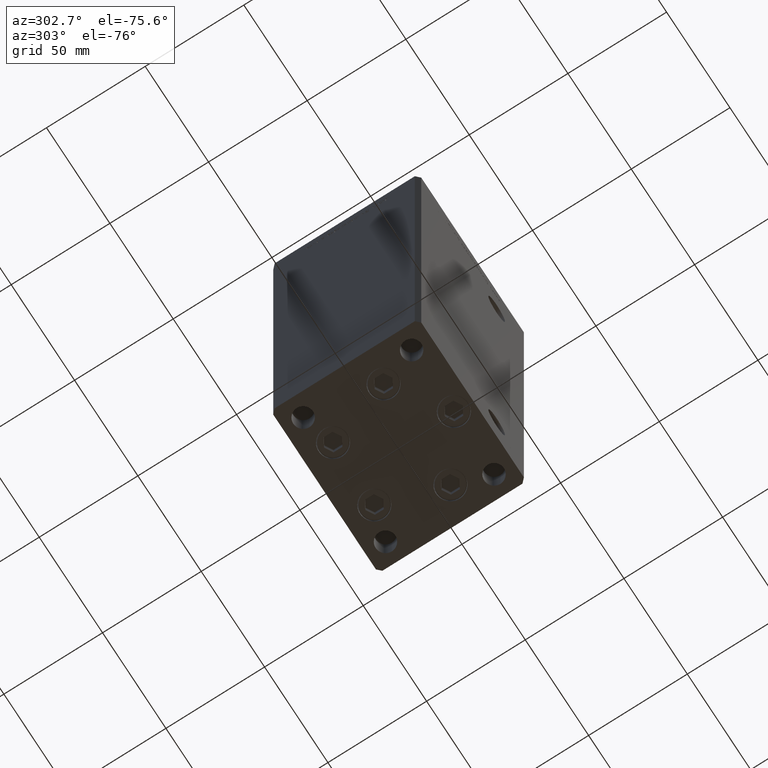
[diagram: clean part render]
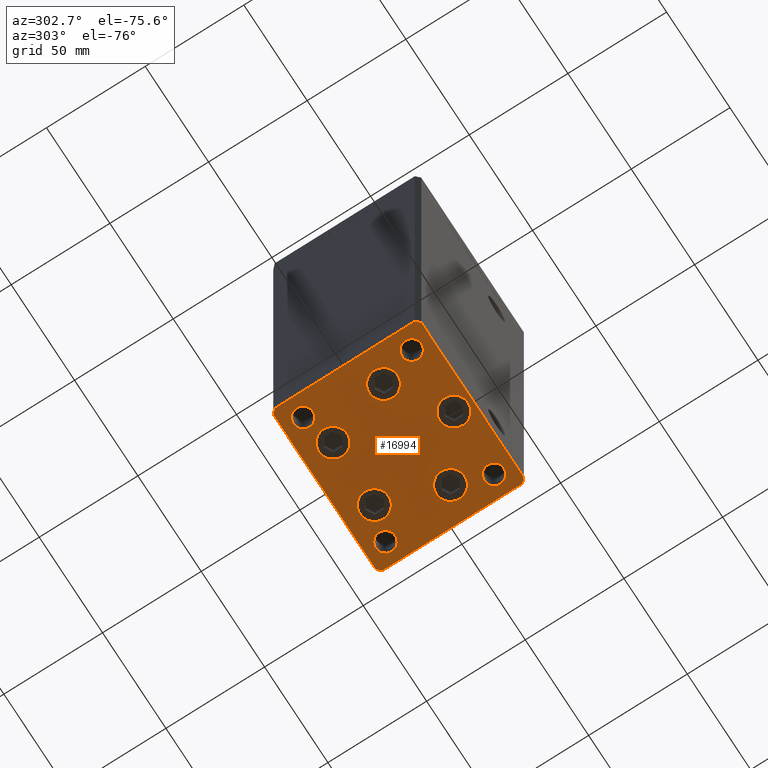
[diagram: same view with one face highlighted and labeled with its STEP entity id]
A machine part, auxiliary view. The second image highlights one B-rep face of the part: STEP entity #16994.
In plain terms, the highlighted planar face has unit normal (0, 0, -1).
Its self-contained STEP definition (entity closure, byte-faithful):
#33 = CARTESIAN_POINT ( 'NONE',  ( -42.50000000000000711, 35.49999999999997158, 0.000000000000000000 ) ) ;
#580 = LINE ( 'NONE', #33, #50835 ) ;
#664 = CIRCLE ( 'NONE', #42007, 7.249999999999999112 ) ;
#776 = ORIENTED_EDGE ( 'NONE', *, *, #23156, .T. ) ;
#891 = CARTESIAN_POINT ( 'NONE',  ( -37.50000000000000711, -27.49999999999999645, 0.000000000000000000 ) ) ;
#1391 = VERTEX_POINT ( 'NONE', #10373 ) ;
#2259 = VERTEX_POINT ( 'NONE', #48441 ) ;
#2472 = VERTEX_POINT ( 'NONE', #41661 ) ;
#2809 = EDGE_CURVE ( 'NONE', #41446, #3009, #29041, .T. ) ;
#2838 = VERTEX_POINT ( 'NONE', #34723 ) ;
#3009 = VERTEX_POINT ( 'NONE', #891 ) ;
#3750 = LINE ( 'NONE', #20913, #55536 ) ;
#3874 = CARTESIAN_POINT ( 'NONE',  ( -42.50000000000000000, -35.50000000000000711, 0.000000000000000000 ) ) ;
#3926 = ORIENTED_EDGE ( 'NONE', *, *, #34559, .T. ) ;
#3957 = CARTESIAN_POINT ( 'NONE',  ( -40.50000000000000711, 37.49999999999997868, 0.000000000000000000 ) ) ;
#4459 = DIRECTION ( 'NONE',  ( 0.7071067811865474617, 0.7071067811865474617, 0.000000000000000000 ) ) ;
#4513 = EDGE_CURVE ( 'NONE', #12837, #52924, #17392, .T. ) ;
#4529 = CIRCLE ( 'NONE', #54897, 7.249999999999999112 ) ;
#4868 = DIRECTION ( 'NONE',  ( 1.000000000000000000, 0.000000000000000000, 0.000000000000000000 ) ) ;
#5508 = AXIS2_PLACEMENT_3D ( 'NONE', #28503, #50453, #45672 ) ;
#6315 = EDGE_CURVE ( 'NONE', #27665, #29137, #21082, .T. ) ;
#7503 = DIRECTION ( 'NONE',  ( 1.000000000000000000, 0.000000000000000000, 0.000000000000000000 ) ) ;
#7764 = EDGE_CURVE ( 'NONE', #41895, #2259, #26496, .T. ) ;
#8643 = AXIS2_PLACEMENT_3D ( 'NONE', #25101, #29588, #50988 ) ;
#8740 = DIRECTION ( 'NONE',  ( 9.773090005503140331E-17, -1.000000000000000000, 0.000000000000000000 ) ) ;
#8746 = FACE_BOUND ( 'NONE', #36999, .T. ) ;
#9086 = LINE ( 'NONE', #26246, #42209 ) ;
#9146 = CARTESIAN_POINT ( 'NONE',  ( -9.072913342905431833, 22.74999999999999645, 0.000000000000000000 ) ) ;
#9311 = LINE ( 'NONE', #13546, #33578 ) ;
#10333 = VERTEX_POINT ( 'NONE', #3874 ) ;
#10373 = CARTESIAN_POINT ( 'NONE',  ( 23.57291334290542295, 22.75000000000000000, 0.000000000000000000 ) ) ;
#10815 = ORIENTED_EDGE ( 'NONE', *, *, #55677, .T. ) ;
#11242 = AXIS2_PLACEMENT_3D ( 'NONE', #53846, #31600, #14718 ) ;
#11310 = CARTESIAN_POINT ( 'NONE',  ( -19.14865316429777309, -9.333333333333335702, 0.000000000000000000 ) ) ;
#11574 = CARTESIAN_POINT ( 'NONE',  ( 26.39865316429776954, -9.333333333333330373, 0.000000000000000000 ) ) ;
#11704 = CARTESIAN_POINT ( 'NONE',  ( 42.49999999999992895, 35.50000000000000000, 0.000000000000000000 ) ) ;
#12560 = AXIS2_PLACEMENT_3D ( 'NONE', #39046, #33992, #21595 ) ;
#12701 = FACE_BOUND ( 'NONE', #28419, .T. ) ;
#12714 = EDGE_CURVE ( 'NONE', #48864, #53517, #29357, .T. ) ;
#12797 = DIRECTION ( 'NONE',  ( 1.000000000000000000, 0.000000000000000000, 0.000000000000000000 ) ) ;
#12837 = VERTEX_POINT ( 'NONE', #42399 ) ;
#12967 = CARTESIAN_POINT ( 'NONE',  ( -16.32291334290543006, 22.74999999999999645, 0.000000000000000000 ) ) ;
#12978 = FACE_BOUND ( 'NONE', #14777, .T. ) ;
#13216 = CARTESIAN_POINT ( 'NONE',  ( 37.50000000000000000, 27.49999999999999645, 0.000000000000000000 ) ) ;
#13315 = AXIS2_PLACEMENT_3D ( 'NONE', #12967, #47578, #16913 ) ;
#13546 = CARTESIAN_POINT ( 'NONE',  ( 42.50000000000000711, -35.50000000000000000, 0.000000000000000000 ) ) ;
#13556 = CARTESIAN_POINT ( 'NONE',  ( -33.64865316429776954, -9.333333333333337478, 0.000000000000000000 ) ) ;
#13562 = CARTESIAN_POINT ( 'NONE',  ( 27.50000000000000355, 27.49999999999999645, 0.000000000000000000 ) ) ;
#13572 = ORIENTED_EDGE ( 'NONE', *, *, #30451, .T. ) ;
#13861 = DIRECTION ( 'NONE',  ( 1.000000000000000000, 1.713307136767217096E-16, 0.000000000000000000 ) ) ;
#14032 = AXIS2_PLACEMENT_3D ( 'NONE', #44271, #43988, #4868 ) ;
#14184 = EDGE_CURVE ( 'NONE', #23744, #49807, #43778, .T. ) ;
#14556 = DIRECTION ( 'NONE',  ( 1.000000000000000000, 0.000000000000000000, 0.000000000000000000 ) ) ;
#14657 = AXIS2_PLACEMENT_3D ( 'NONE', #18392, #43445, #12797 ) ;
#14718 = DIRECTION ( 'NONE',  ( 1.000000000000000000, 0.000000000000000000, 0.000000000000000000 ) ) ;
#14777 = EDGE_LOOP ( 'NONE', ( #22329, #3926 ) ) ;
#15237 = DIRECTION ( 'NONE',  ( 0.000000000000000000, -0.000000000000000000, -1.000000000000000000 ) ) ;
#15483 = DIRECTION ( 'NONE',  ( 1.000000000000000000, 0.000000000000000000, 0.000000000000000000 ) ) ;
#15523 = EDGE_CURVE ( 'NONE', #53517, #48864, #55430, .T. ) ;
#15672 = DIRECTION ( 'NONE',  ( -0.000000000000000000, 0.000000000000000000, 1.000000000000000000 ) ) ;
#15873 = CARTESIAN_POINT ( 'NONE',  ( -40.50000000000000711, 37.49999999999997868, 0.000000000000000000 ) ) ;
#16272 = ORIENTED_EDGE ( 'NONE', *, *, #28252, .T. ) ;
#16913 = DIRECTION ( 'NONE',  ( 1.000000000000000000, 0.000000000000000000, 0.000000000000000000 ) ) ;
#16994 = ADVANCED_FACE ( 'NONE', ( #21135, #12978, #38307, #17192, #51256, #34354, #34078, #12701, #30131, #8746 ), #43078, .T. ) ;
#17192 = FACE_BOUND ( 'NONE', #21448, .T. ) ;
#17392 = CIRCLE ( 'NONE', #48853, 4.999999999999997335 ) ;
#17728 = VECTOR ( 'NONE', #49964, 1000.000000000000000 ) ;
#18011 = CARTESIAN_POINT ( 'NONE',  ( 32.50000000000000000, 27.49999999999999645, 0.000000000000000000 ) ) ;
#18094 = DIRECTION ( 'NONE',  ( 0.000000000000000000, -0.000000000000000000, -1.000000000000000000 ) ) ;
#18392 = CARTESIAN_POINT ( 'NONE',  ( -32.50000000000000000, -27.49999999999999645, 0.000000000000000000 ) ) ;
#18595 = DIRECTION ( 'NONE',  ( -1.172770800660376741E-15, 1.000000000000000000, 0.000000000000000000 ) ) ;
#18733 = DIRECTION ( 'NONE',  ( 0.000000000000000000, -0.000000000000000000, -1.000000000000000000 ) ) ;
#18775 = CIRCLE ( 'NONE', #53823, 7.249999999999999112 ) ;
#18785 = ORIENTED_EDGE ( 'NONE', *, *, #15523, .F. ) ;
#18931 = CIRCLE ( 'NONE', #29695, 4.999999999999997335 ) ;
#19202 = DIRECTION ( 'NONE',  ( 1.000000000000000000, 0.000000000000000000, 0.000000000000000000 ) ) ;
#19382 = VERTEX_POINT ( 'NONE', #26215 ) ;
#19451 = CIRCLE ( 'NONE', #8643, 4.999999999999997335 ) ;
#19874 = CARTESIAN_POINT ( 'NONE',  ( -42.50000000000000711, 35.49999999999997158, 0.000000000000000000 ) ) ;
#19903 = CIRCLE ( 'NONE', #5508, 5.000000000000000888 ) ;
#20141 = ORIENTED_EDGE ( 'NONE', *, *, #42023, .T. ) ;
#20306 = EDGE_CURVE ( 'NONE', #28331, #22978, #53757, .T. ) ;
#20310 = CARTESIAN_POINT ( 'NONE',  ( 0.000000000000000000, 0.000000000000000000, 0.000000000000000000 ) ) ;
#20557 = AXIS2_PLACEMENT_3D ( 'NONE', #11574, #15237, #54917 ) ;
#20632 = CARTESIAN_POINT ( 'NONE',  ( 16.32291334290542295, 22.75000000000000000, 0.000000000000000000 ) ) ;
#20913 = CARTESIAN_POINT ( 'NONE',  ( 42.49999999999992895, 35.50000000000000000, 0.000000000000000000 ) ) ;
#21082 = CIRCLE ( 'NONE', #48041, 7.250000000000000000 ) ;
#21135 = FACE_BOUND ( 'NONE', #55573, .T. ) ;
#21174 = DIRECTION ( 'NONE',  ( 1.000000000000000000, 0.000000000000000000, 0.000000000000000000 ) ) ;
#21448 = EDGE_LOOP ( 'NONE', ( #40344, #50923 ) ) ;
#21595 = DIRECTION ( 'NONE',  ( 1.000000000000000000, 0.000000000000000000, 0.000000000000000000 ) ) ;
#22329 = ORIENTED_EDGE ( 'NONE', *, *, #32295, .T. ) ;
#22495 = ORIENTED_EDGE ( 'NONE', *, *, #39364, .T. ) ;
#22978 = VERTEX_POINT ( 'NONE', #34055 ) ;
#23156 = EDGE_CURVE ( 'NONE', #49807, #23744, #4529, .T. ) ;
#23512 = CARTESIAN_POINT ( 'NONE',  ( 26.39865316429776954, -9.333333333333330373, 0.000000000000000000 ) ) ;
#23576 = EDGE_CURVE ( 'NONE', #46477, #42893, #35113, .T. ) ;
#23744 = VERTEX_POINT ( 'NONE', #11310 ) ;
#23788 = DIRECTION ( 'NONE',  ( 1.000000000000000000, 0.000000000000000000, 0.000000000000000000 ) ) ;
#24127 = ORIENTED_EDGE ( 'NONE', *, *, #2809, .T. ) ;
#25101 = CARTESIAN_POINT ( 'NONE',  ( 32.50000000000000000, -27.49999999999999645, 0.000000000000000000 ) ) ;
#25302 = EDGE_CURVE ( 'NONE', #29137, #27665, #47259, .T. ) ;
#25351 = DIRECTION ( 'NONE',  ( 0.7071067811865463515, -0.7071067811865487940, 0.000000000000000000 ) ) ;
#25697 = AXIS2_PLACEMENT_3D ( 'NONE', #39767, #18094, #19202 ) ;
#25789 = AXIS2_PLACEMENT_3D ( 'NONE', #28891, #15672, #32828 ) ;
#25900 = CARTESIAN_POINT ( 'NONE',  ( -42.50000000000000000, -35.50000000000000711, 0.000000000000000000 ) ) ;
#26215 = CARTESIAN_POINT ( 'NONE',  ( 9.072913342905424727, 22.75000000000000000, 0.000000000000000000 ) ) ;
#26246 = CARTESIAN_POINT ( 'NONE',  ( -40.49999999999999289, -37.50000000000002132, 0.000000000000000000 ) ) ;
#26395 = EDGE_CURVE ( 'NONE', #52924, #12837, #19451, .T. ) ;
#26446 = LINE ( 'NONE', #25900, #46931 ) ;
#26452 = ORIENTED_EDGE ( 'NONE', *, *, #4513, .T. ) ;
#26496 = CIRCLE ( 'NONE', #11242, 7.249999999999999112 ) ;
#27013 = DIRECTION ( 'NONE',  ( -0.000000000000000000, 0.000000000000000000, 1.000000000000000000 ) ) ;
#27665 = VERTEX_POINT ( 'NONE', #46150 ) ;
#28252 = EDGE_CURVE ( 'NONE', #22978, #28331, #664, .T. ) ;
#28331 = VERTEX_POINT ( 'NONE', #46297 ) ;
#28345 = EDGE_CURVE ( 'NONE', #2472, #29624, #33063, .T. ) ;
#28377 = ORIENTED_EDGE ( 'NONE', *, *, #12714, .F. ) ;
#28419 = EDGE_LOOP ( 'NONE', ( #18785, #28377 ) ) ;
#28459 = ORIENTED_EDGE ( 'NONE', *, *, #52664, .T. ) ;
#28503 = CARTESIAN_POINT ( 'NONE',  ( -32.50000000000000000, -27.49999999999999645, 0.000000000000000000 ) ) ;
#28617 = CARTESIAN_POINT ( 'NONE',  ( -32.50000000000000000, 27.50000000000000355, 0.000000000000000000 ) ) ;
#28735 = CARTESIAN_POINT ( 'NONE',  ( 42.50000000000000711, -35.50000000000000000, 0.000000000000000000 ) ) ;
#28865 = CARTESIAN_POINT ( 'NONE',  ( 40.50000000000000000, -37.50000000000000711, 0.000000000000000000 ) ) ;
#28891 = CARTESIAN_POINT ( 'NONE',  ( -32.50000000000000000, 27.50000000000000355, 0.000000000000000000 ) ) ;
#29041 = CIRCLE ( 'NONE', #14657, 5.000000000000000888 ) ;
#29137 = VERTEX_POINT ( 'NONE', #32746 ) ;
#29220 = VECTOR ( 'NONE', #4459, 1000.000000000000114 ) ;
#29345 = EDGE_CURVE ( 'NONE', #43269, #2472, #3750, .T. ) ;
#29357 = CIRCLE ( 'NONE', #25789, 5.000000000000000888 ) ;
#29588 = DIRECTION ( 'NONE',  ( 0.000000000000000000, -0.000000000000000000, -1.000000000000000000 ) ) ;
#29624 = VERTEX_POINT ( 'NONE', #3957 ) ;
#29627 = DIRECTION ( 'NONE',  ( -0.7071067811865474617, 0.7071067811865474617, 0.000000000000000000 ) ) ;
#29695 = AXIS2_PLACEMENT_3D ( 'NONE', #18011, #27013, #52357 ) ;
#30062 = CARTESIAN_POINT ( 'NONE',  ( 40.50000000000000000, -37.50000000000000711, 0.000000000000000000 ) ) ;
#30131 = FACE_OUTER_BOUND ( 'NONE', #34575, .T. ) ;
#30451 = EDGE_CURVE ( 'NONE', #2259, #41895, #48387, .T. ) ;
#31600 = DIRECTION ( 'NONE',  ( 0.000000000000000000, -0.000000000000000000, -1.000000000000000000 ) ) ;
#32202 = LINE ( 'NONE', #15873, #48655 ) ;
#32295 = EDGE_CURVE ( 'NONE', #19382, #1391, #18775, .T. ) ;
#32450 = DIRECTION ( 'NONE',  ( 0.000000000000000000, -0.000000000000000000, -1.000000000000000000 ) ) ;
#32746 = CARTESIAN_POINT ( 'NONE',  ( 7.250000000000003553, -28.00000000000000000, 0.000000000000000000 ) ) ;
#32828 = DIRECTION ( 'NONE',  ( 1.000000000000000000, 0.000000000000000000, 0.000000000000000000 ) ) ;
#32851 = ORIENTED_EDGE ( 'NONE', *, *, #28345, .T. ) ;
#33031 = DIRECTION ( 'NONE',  ( -0.7071067811865463515, -0.7071067811865487940, 0.000000000000000000 ) ) ;
#33063 = LINE ( 'NONE', #50248, #17728 ) ;
#33107 = DIRECTION ( 'NONE',  ( -0.000000000000000000, 0.000000000000000000, 1.000000000000000000 ) ) ;
#33293 = DIRECTION ( 'NONE',  ( 0.000000000000000000, -0.000000000000000000, -1.000000000000000000 ) ) ;
#33578 = VECTOR ( 'NONE', #18595, 1000.000000000000000 ) ;
#33953 = EDGE_CURVE ( 'NONE', #2838, #39825, #9086, .T. ) ;
#33992 = DIRECTION ( 'NONE',  ( 0.000000000000000000, -0.000000000000000000, -1.000000000000000000 ) ) ;
#34021 = LINE ( 'NONE', #30062, #29220 ) ;
#34055 = CARTESIAN_POINT ( 'NONE',  ( 33.64865316429776954, -9.333333333333328596, 0.000000000000000000 ) ) ;
#34078 = FACE_BOUND ( 'NONE', #42733, .T. ) ;
#34138 = CARTESIAN_POINT ( 'NONE',  ( 32.50000000000000000, 27.49999999999999645, 0.000000000000000000 ) ) ;
#34354 = FACE_BOUND ( 'NONE', #42404, .T. ) ;
#34559 = EDGE_CURVE ( 'NONE', #1391, #19382, #46704, .T. ) ;
#34575 = EDGE_LOOP ( 'NONE', ( #43901, #42797, #10815, #51753, #34700, #32851, #20141, #28459 ) ) ;
#34700 = ORIENTED_EDGE ( 'NONE', *, *, #29345, .T. ) ;
#34723 = CARTESIAN_POINT ( 'NONE',  ( -40.49999999999999289, -37.50000000000002132, 0.000000000000000000 ) ) ;
#34971 = DIRECTION ( 'NONE',  ( -0.000000000000000000, 0.000000000000000000, 1.000000000000000000 ) ) ;
#35113 = CIRCLE ( 'NONE', #38702, 4.999999999999997335 ) ;
#35986 = ORIENTED_EDGE ( 'NONE', *, *, #20306, .T. ) ;
#36481 = EDGE_CURVE ( 'NONE', #42893, #46477, #18931, .T. ) ;
#36828 = ORIENTED_EDGE ( 'NONE', *, *, #26395, .T. ) ;
#36999 = EDGE_LOOP ( 'NONE', ( #24127, #22495 ) ) ;
#37430 = AXIS2_PLACEMENT_3D ( 'NONE', #28617, #33107, #7503 ) ;
#38307 = FACE_BOUND ( 'NONE', #48956, .T. ) ;
#38504 = CARTESIAN_POINT ( 'NONE',  ( -27.50000000000000000, -27.49999999999999645, 0.000000000000000000 ) ) ;
#38702 = AXIS2_PLACEMENT_3D ( 'NONE', #34138, #34971, #51594 ) ;
#39046 = CARTESIAN_POINT ( 'NONE',  ( 16.32291334290542295, 22.75000000000000000, 0.000000000000000000 ) ) ;
#39315 = ORIENTED_EDGE ( 'NONE', *, *, #14184, .T. ) ;
#39364 = EDGE_CURVE ( 'NONE', #3009, #41446, #19903, .T. ) ;
#39767 = CARTESIAN_POINT ( 'NONE',  ( -26.39865316429776954, -9.333333333333337478, 0.000000000000000000 ) ) ;
#39825 = VERTEX_POINT ( 'NONE', #28865 ) ;
#40344 = ORIENTED_EDGE ( 'NONE', *, *, #6315, .T. ) ;
#41098 = DIRECTION ( 'NONE',  ( 0.000000000000000000, -0.000000000000000000, -1.000000000000000000 ) ) ;
#41446 = VERTEX_POINT ( 'NONE', #38504 ) ;
#41661 = CARTESIAN_POINT ( 'NONE',  ( 40.49999999999991473, 37.50000000000000711, 0.000000000000000000 ) ) ;
#41895 = VERTEX_POINT ( 'NONE', #9146 ) ;
#42007 = AXIS2_PLACEMENT_3D ( 'NONE', #23512, #18733, #23788 ) ;
#42021 = CARTESIAN_POINT ( 'NONE',  ( 3.429011037612589276E-15, -28.00000000000000000, 0.000000000000000000 ) ) ;
#42023 = EDGE_CURVE ( 'NONE', #29624, #46837, #32202, .T. ) ;
#42209 = VECTOR ( 'NONE', #13861, 1000.000000000000000 ) ;
#42399 = CARTESIAN_POINT ( 'NONE',  ( 37.50000000000000000, -27.49999999999999645, 0.000000000000000000 ) ) ;
#42404 = EDGE_LOOP ( 'NONE', ( #47007, #49727 ) ) ;
#42733 = EDGE_LOOP ( 'NONE', ( #26452, #36828 ) ) ;
#42740 = CARTESIAN_POINT ( 'NONE',  ( 27.50000000000000355, -27.49999999999999645, 0.000000000000000000 ) ) ;
#42797 = ORIENTED_EDGE ( 'NONE', *, *, #33953, .T. ) ;
#42893 = VERTEX_POINT ( 'NONE', #13216 ) ;
#43078 = PLANE ( 'NONE',  #50102 ) ;
#43269 = VERTEX_POINT ( 'NONE', #11704 ) ;
#43445 = DIRECTION ( 'NONE',  ( 0.000000000000000000, -0.000000000000000000, -1.000000000000000000 ) ) ;
#43778 = CIRCLE ( 'NONE', #25697, 7.249999999999999112 ) ;
#43901 = ORIENTED_EDGE ( 'NONE', *, *, #44706, .T. ) ;
#43988 = DIRECTION ( 'NONE',  ( 0.000000000000000000, -0.000000000000000000, -1.000000000000000000 ) ) ;
#44271 = CARTESIAN_POINT ( 'NONE',  ( 3.429011037612589276E-15, -28.00000000000000000, 0.000000000000000000 ) ) ;
#44706 = EDGE_CURVE ( 'NONE', #10333, #2838, #26446, .T. ) ;
#45121 = DIRECTION ( 'NONE',  ( 1.000000000000000000, 0.000000000000000000, 0.000000000000000000 ) ) ;
#45672 = DIRECTION ( 'NONE',  ( 1.000000000000000000, 0.000000000000000000, 0.000000000000000000 ) ) ;
#45716 = EDGE_LOOP ( 'NONE', ( #776, #39315 ) ) ;
#46010 = ORIENTED_EDGE ( 'NONE', *, *, #7764, .T. ) ;
#46150 = CARTESIAN_POINT ( 'NONE',  ( -7.249999999999997335, -28.00000000000000000, 0.000000000000000000 ) ) ;
#46297 = CARTESIAN_POINT ( 'NONE',  ( 19.14865316429777309, -9.333333333333330373, 0.000000000000000000 ) ) ;
#46477 = VERTEX_POINT ( 'NONE', #13562 ) ;
#46704 = CIRCLE ( 'NONE', #12560, 7.249999999999999112 ) ;
#46709 = CARTESIAN_POINT ( 'NONE',  ( 32.50000000000000000, -27.49999999999999645, 0.000000000000000000 ) ) ;
#46837 = VERTEX_POINT ( 'NONE', #19874 ) ;
#46931 = VECTOR ( 'NONE', #25351, 1000.000000000000000 ) ;
#47007 = ORIENTED_EDGE ( 'NONE', *, *, #36481, .F. ) ;
#47259 = CIRCLE ( 'NONE', #14032, 7.250000000000000000 ) ;
#47491 = VERTEX_POINT ( 'NONE', #28735 ) ;
#47578 = DIRECTION ( 'NONE',  ( 0.000000000000000000, -0.000000000000000000, -1.000000000000000000 ) ) ;
#48041 = AXIS2_PLACEMENT_3D ( 'NONE', #42021, #32450, #45121 ) ;
#48387 = CIRCLE ( 'NONE', #13315, 7.249999999999999112 ) ;
#48421 = DIRECTION ( 'NONE',  ( 1.000000000000000000, 0.000000000000000000, 0.000000000000000000 ) ) ;
#48441 = CARTESIAN_POINT ( 'NONE',  ( -23.57291334290543006, 22.74999999999999645, 0.000000000000000000 ) ) ;
#48655 = VECTOR ( 'NONE', #33031, 1000.000000000000000 ) ;
#48839 = EDGE_CURVE ( 'NONE', #47491, #43269, #9311, .T. ) ;
#48853 = AXIS2_PLACEMENT_3D ( 'NONE', #46709, #41098, #15483 ) ;
#48864 = VERTEX_POINT ( 'NONE', #52385 ) ;
#48956 = EDGE_LOOP ( 'NONE', ( #35986, #16272 ) ) ;
#49727 = ORIENTED_EDGE ( 'NONE', *, *, #23576, .F. ) ;
#49735 = DIRECTION ( 'NONE',  ( 0.000000000000000000, -0.000000000000000000, -1.000000000000000000 ) ) ;
#49807 = VERTEX_POINT ( 'NONE', #13556 ) ;
#49964 = DIRECTION ( 'NONE',  ( -1.000000000000000000, -3.426614273534436165E-16, 0.000000000000000000 ) ) ;
#50102 = AXIS2_PLACEMENT_3D ( 'NONE', #20310, #52092, #48421 ) ;
#50248 = CARTESIAN_POINT ( 'NONE',  ( 40.49999999999991473, 37.50000000000000711, 0.000000000000000000 ) ) ;
#50453 = DIRECTION ( 'NONE',  ( 0.000000000000000000, -0.000000000000000000, -1.000000000000000000 ) ) ;
#50835 = VECTOR ( 'NONE', #8740, 1000.000000000000000 ) ;
#50923 = ORIENTED_EDGE ( 'NONE', *, *, #25302, .T. ) ;
#50988 = DIRECTION ( 'NONE',  ( 1.000000000000000000, 0.000000000000000000, 0.000000000000000000 ) ) ;
#51256 = FACE_BOUND ( 'NONE', #45716, .T. ) ;
#51594 = DIRECTION ( 'NONE',  ( 1.000000000000000000, 0.000000000000000000, 0.000000000000000000 ) ) ;
#51753 = ORIENTED_EDGE ( 'NONE', *, *, #48839, .T. ) ;
#52092 = DIRECTION ( 'NONE',  ( -0.000000000000000000, 0.000000000000000000, 1.000000000000000000 ) ) ;
#52357 = DIRECTION ( 'NONE',  ( 1.000000000000000000, 0.000000000000000000, 0.000000000000000000 ) ) ;
#52385 = CARTESIAN_POINT ( 'NONE',  ( -37.50000000000000711, 27.50000000000000355, 0.000000000000000000 ) ) ;
#52664 = EDGE_CURVE ( 'NONE', #46837, #10333, #580, .T. ) ;
#52924 = VERTEX_POINT ( 'NONE', #42740 ) ;
#53402 = CARTESIAN_POINT ( 'NONE',  ( -26.39865316429776954, -9.333333333333337478, 0.000000000000000000 ) ) ;
#53517 = VERTEX_POINT ( 'NONE', #54853 ) ;
#53757 = CIRCLE ( 'NONE', #20557, 7.249999999999999112 ) ;
#53823 = AXIS2_PLACEMENT_3D ( 'NONE', #20632, #33293, #21174 ) ;
#53846 = CARTESIAN_POINT ( 'NONE',  ( -16.32291334290543006, 22.74999999999999645, 0.000000000000000000 ) ) ;
#54853 = CARTESIAN_POINT ( 'NONE',  ( -27.50000000000000000, 27.50000000000000355, 0.000000000000000000 ) ) ;
#54897 = AXIS2_PLACEMENT_3D ( 'NONE', #53402, #49735, #14556 ) ;
#54917 = DIRECTION ( 'NONE',  ( 1.000000000000000000, 0.000000000000000000, 0.000000000000000000 ) ) ;
#55430 = CIRCLE ( 'NONE', #37430, 5.000000000000000888 ) ;
#55536 = VECTOR ( 'NONE', #29627, 1000.000000000000114 ) ;
#55573 = EDGE_LOOP ( 'NONE', ( #13572, #46010 ) ) ;
#55677 = EDGE_CURVE ( 'NONE', #39825, #47491, #34021, .T. ) ;